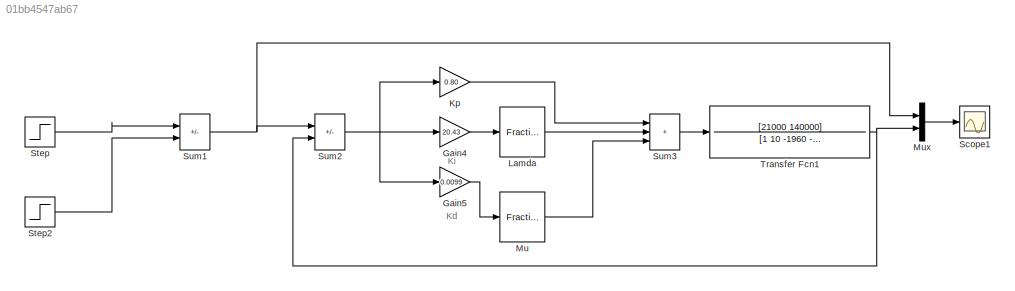
MODEL slx_01bb4547ab67
KIND model
CONFIG AbsTol = auto
CONFIG EnableMultiTasking = off
CONFIG FixedStep = auto
CONFIG MaxStep = auto
CONFIG MinStep = auto
CONFIG RelTol = 1e-3
CONFIG SampleTimeConstraint = Unconstrained
CONFIG SolverName = VariableStepAuto
CONFIG StartTime = 0.0
CONFIG StopTime = 1
BLOCK [Gain] Gain4
  Gain = 20.43
BLOCK [Gain] Gain5
  Gain = 0.0099
BLOCK [Gain] Kp
  Gain = 0.80
BLOCK [Reference] Lamda  REF=fod/Fractional  (lib defined in slx_5cb2d42c7bef)
integrator
  Ports = [1, 1]
  SourceBlock = fod/Fractional\nintegrator
  SourceProductName = FOMCON Toolbox
  SourceType = Fractional integrator
BLOCK [Reference] Mu  REF=fod/Fractional  (lib defined in slx_5cb2d42c7bef)
derivative
  Ports = [1, 1]
  SourceBlock = fod/Fractional\nderivative
  SourceProductName = FOMCON Toolbox
  SourceType = Fractional derivative
BLOCK [Mux] Mux
  DisplayOption = bar
  Inputs = 2
  Ports = [2, 1]
BLOCK [Scope] Scope1
  Floating = off
  NumInputPorts = 1
  Ports = [1]
  ScopeSpecificationString = Simulink.scopes.TimeScopeBlockCfg('CurrentConfiguration', extmgr.ConfigurationSet(extmgr.Configuration('Core','General UI',true,'FigureColor',[1 1 1]),extmgr.Configuration('Core','Source UI',true),extmgr.Configuration('Sources','WiredSimulink',true),extmgr.Configuration('Visuals','Time Domain',true,'SerializedDisplays',{struct('MinYLimReal','-0.13831','MaxYLimReal','1.24481','YLabelReal','','MinYL...<+1696ch>
BLOCK [Step] Step
  After = 0.5
  SampleTime = 0
  Time = 0
BLOCK [Step] Step2
  After = 0.3
  SampleTime = 0
  Time = 0.5
BLOCK [Sum] Sum1
  IconShape = rectangular
  Inputs = +-
  Ports = [2, 1]
BLOCK [Sum] Sum2
  IconShape = rectangular
  Inputs = |+-
  Ports = [2, 1]
BLOCK [Sum] Sum3
  IconShape = rectangular
  Inputs = +++
  Ports = [3, 1]
BLOCK [TransferFcn] Transfer Fcn1
  Denominator = [1 10 -1960 -19600]
  Numerator = [21000 140000]
ANNOTATION (root): Kd
ANNOTATION (root): Ki
LINE Gain4:1 -> Lamda:1
LINE Gain5:1 -> Mu:1
LINE Kp:1 -> Sum3:1
LINE Lamda:1 -> Sum3:2
LINE Mu:1 -> Sum3:3
LINE Mux:1 -> Scope1:1
LINE Step2:1 -> Sum1:2
LINE Step:1 -> Sum1:1
NET Sum1:1 -> Mux:1, Sum2:1
NET Sum2:1 -> Gain4:1, Gain5:1, Kp:1
LINE Sum3:1 -> Transfer Fcn1:1
NET Transfer Fcn1:1 -> Mux:2, Sum2:2
note: NET lines group one-source signal fan-out (src -> all destinations, sorted); 1:1 wires keep LINE
